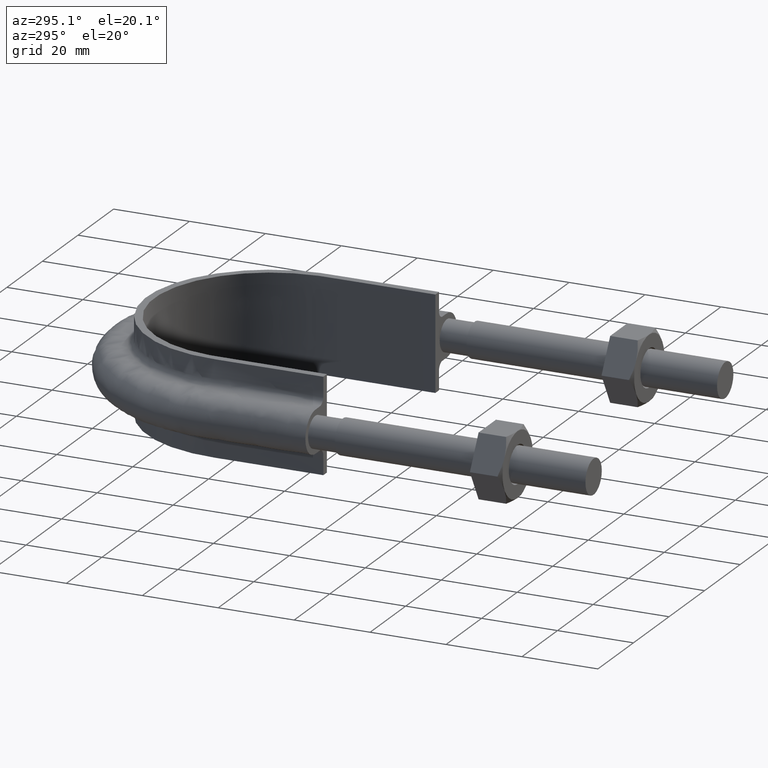
[diagram: clean part render]
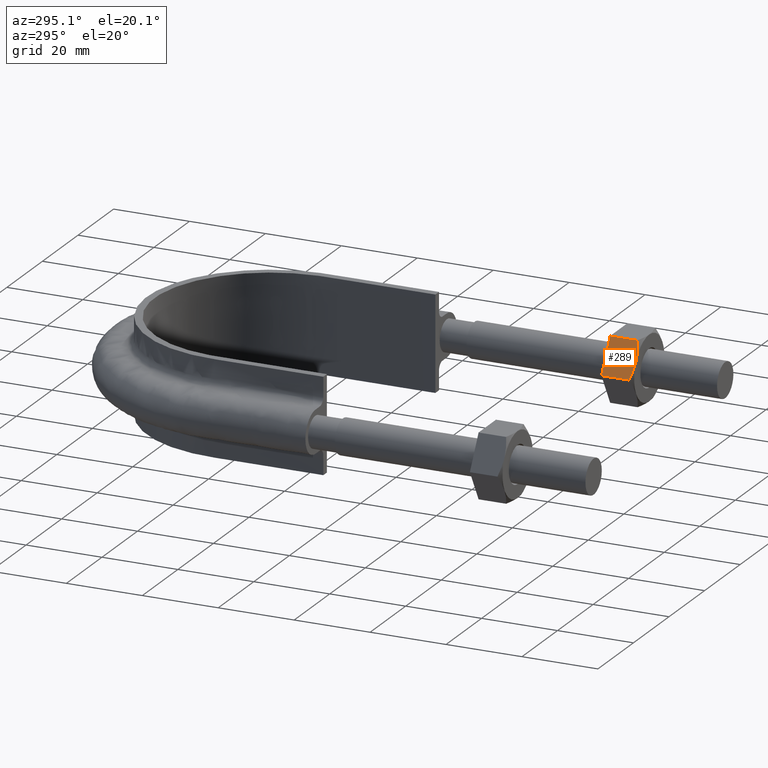
[diagram: same view with one face highlighted and labeled with its STEP entity id]
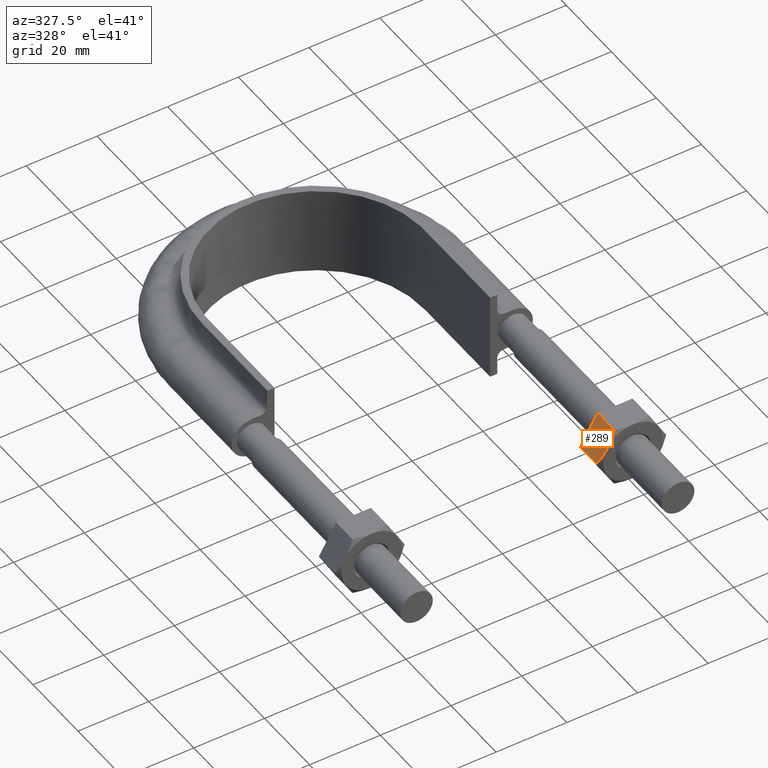
[diagram: same view with one face highlighted and labeled with its STEP entity id]
A machine part, auxiliary view. The second image highlights one B-rep face of the part: STEP entity #289.
A second angle (auxiliary view) of the same face is appended — the face is thin or edge-on in the first view.
In plain terms, the highlighted planar face has unit normal (0.866, -0, -0.5).
Its self-contained STEP definition (entity closure, byte-faithful):
#289 = ADVANCED_FACE( '', ( #455 ), #456, .F. );
#455 = FACE_OUTER_BOUND( '', #1452, .T. );
#456 = PLANE( '', #1453 );
#1452 = EDGE_LOOP( '', ( #1960, #1961, #1962, #1963, #1964 ) );
#1453 = AXIS2_PLACEMENT_3D( '', #1965, #1966, #1967 );
#1960 = ORIENTED_EDGE( '', *, *, #2151, .F. );
#1961 = ORIENTED_EDGE( '', *, *, #2140, .F. );
#1962 = ORIENTED_EDGE( '', *, *, #2144, .F. );
#1963 = ORIENTED_EDGE( '', *, *, #2129, .F. );
#1964 = ORIENTED_EDGE( '', *, *, #2150, .F. );
#1965 = CARTESIAN_POINT( '', ( 27.1850454237764, 27.9999999999964, -3.85653520836721E-012 ) );
#1966 = DIRECTION( '', ( 0.866025403784635, -2.42723201254790E-016, -0.499999999999660 ) );
#1967 = DIRECTION( '', ( 0.000000000000000, -1.00000000000000, 4.85446402509910E-016 ) );
#2129 = EDGE_CURVE( '', #2365, #2367, #2368, .T. );
#2140 = EDGE_CURVE( '', #2384, #2379, #2386, .T. );
#2144 = EDGE_CURVE( '', #2367, #2384, #2391, .T. );
#2150 = EDGE_CURVE( '', #2398, #2365, #2400, .F. );
#2151 = EDGE_CURVE( '', #2379, #2398, #2401, .T. );
#2365 = VERTEX_POINT( '', #2979 );
#2367 = VERTEX_POINT( '', #2981 );
#2368 = LINE( '', #2982, #2983 );
#2379 = VERTEX_POINT( '', #2997 );
#2384 = VERTEX_POINT( '', #3007 );
#2386 = B_SPLINE_CURVE_WITH_KNOTS( '', 3, ( #3009, #3010, #3011, #3012, #3013, #3014 ), .UNSPECIFIED., .F., .F., ( 4, 2, 4 ), ( 1.90029435765254E-017, 0.00246745482903607, 0.00493490965807212 ), .UNSPECIFIED. );
#2391 = LINE( '', #3019, #3020 );
#2398 = VERTEX_POINT( '', #3034 );
#2400 = LINE( '', #3036, #3037 );
#2401 = B_SPLINE_CURVE_WITH_KNOTS( '', 3, ( #3038, #3039, #3040, #3041, #3042, #3043 ), .UNSPECIFIED., .F., .F., ( 4, 2, 4 ), ( 1.73472347597681E-018, 0.00246745482903607, 0.00493490965807214 ), .UNSPECIFIED. );
#2979 = CARTESIAN_POINT( '', ( 27.2000343881808, 27.9999999999964, 0.0259616478974617 ) );
#2981 = CARTESIAN_POINT( '', ( 32.0775337474804, 27.9999999999964, 8.47403835209672 ) );
#2982 = CARTESIAN_POINT( '', ( 32.0887840678290, 27.9999999999964, 8.49352447854181 ) );
#2983 = VECTOR( '', #3250, 1000.00000000000 );
#2997 = CARTESIAN_POINT( '', ( 29.6387840678306, 19.9999999999964, 4.24999999999710 ) );
#3007 = CARTESIAN_POINT( '', ( 32.0775337474804, 20.7505553499429, 8.47403835209670 ) );
#3009 = CARTESIAN_POINT( '', ( 32.0775337474804, 20.7505553499429, 8.47403835209668 ) );
#3010 = CARTESIAN_POINT( '', ( 31.6790699211679, 20.5215585493620, 7.78387875994442 ) );
#3011 = CARTESIAN_POINT( '', ( 31.2775056556609, 20.3328582843670, 7.08834904958171 ) );
#3012 = CARTESIAN_POINT( '', ( 30.4654371916729, 20.0716504305254, 5.68180521072872 ) );
#3013 = CARTESIAN_POINT( '', ( 30.0548670429257, 19.9999999999964, 4.97067685302683 ) );
#3014 = CARTESIAN_POINT( '', ( 29.6387840678306, 19.9999999999964, 4.24999999999709 ) );
#3019 = CARTESIAN_POINT( '', ( 32.0775337474804, 27.9999999999964, 8.47403835209672 ) );
#3020 = VECTOR( '', #3281, 1000.00000000000 );
#3034 = CARTESIAN_POINT( '', ( 27.2000343881808, 20.7505553499429, 0.0259616478974844 ) );
#3036 = CARTESIAN_POINT( '', ( 27.2000343881808, 27.9999999999964, 0.0259616478974619 ) );
#3037 = VECTOR( '', #3290, 1000.00000000000 );
#3038 = CARTESIAN_POINT( '', ( 29.6387840678306, 19.9999999999964, 4.24999999999709 ) );
#3039 = CARTESIAN_POINT( '', ( 29.2227010927356, 19.9999999999964, 3.52932314696735 ) );
#3040 = CARTESIAN_POINT( '', ( 28.8121309439884, 20.0716504305254, 2.81819478926545 ) );
#3041 = CARTESIAN_POINT( '', ( 28.0000624800003, 20.3328582843670, 1.41165095041245 ) );
#3042 = CARTESIAN_POINT( '', ( 27.5984982144934, 20.5215585493620, 0.716121240049770 ) );
#3043 = CARTESIAN_POINT( '', ( 27.2000343881808, 20.7505553499429, 0.0259616478975061 ) );
#3250 = DIRECTION( '', ( 0.499999999999660, -6.94336247798420E-017, 0.866025403784635 ) );
#3281 = DIRECTION( '', ( -2.44921270764475E-016, -1.00000000000000, 6.12303176911193E-017 ) );
#3290 = DIRECTION( '', ( -2.44921270764475E-016, -1.00000000000000, 6.12303176911193E-017 ) );